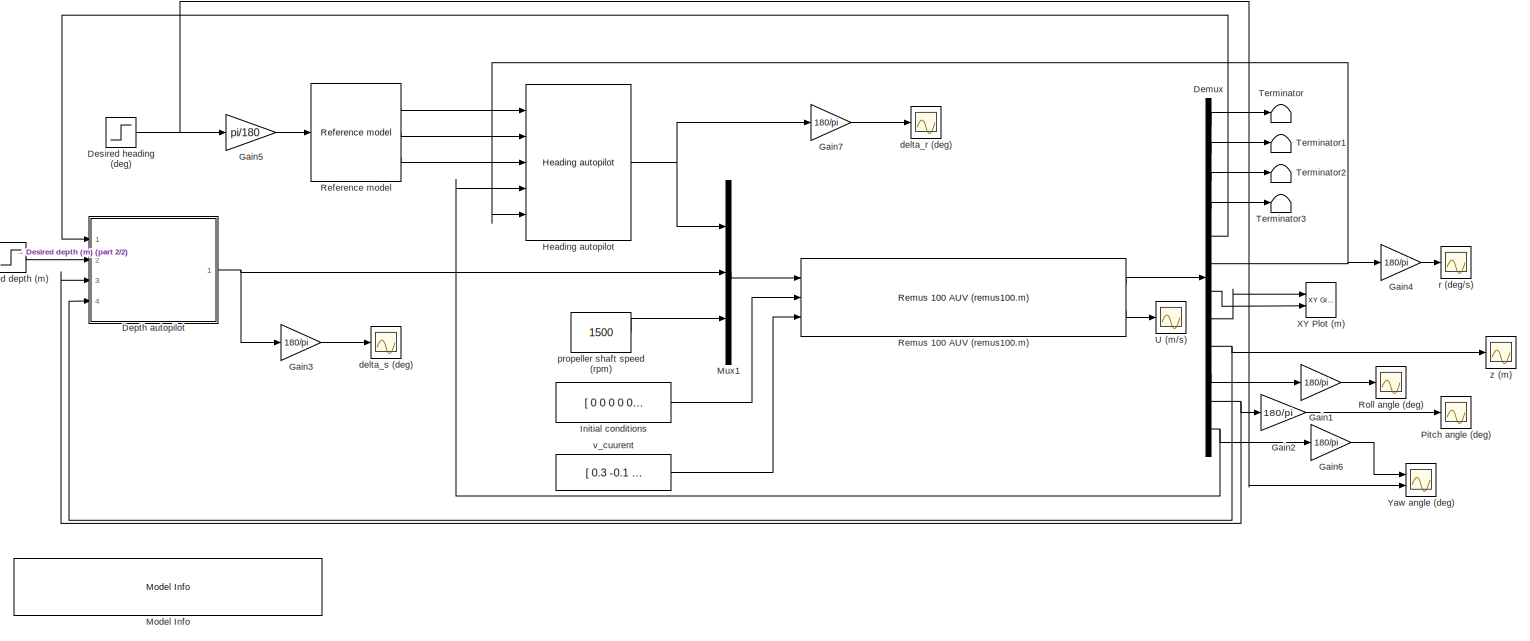
[diagram: root canvas - part 1/2, most of the canvas]
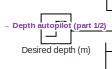
[diagram: root canvas - part 2/2, middle left region]
MODEL slx_07904df64372
KIND model
CONFIG AbsTol = auto
CONFIG EnableMultiTasking = on
CONFIG FixedStep = 0.1
CONFIG MaxStep = auto
CONFIG MinStep = auto
CONFIG RelTol = 1e-3
CONFIG SampleTimeConstraint = Unconstrained
CONFIG SolverName = ode45
CONFIG StartTime = 0.0
CONFIG StopTime = 500
BLOCK [Demux] Demux
  Outputs = 12
  Ports = [1, 12]
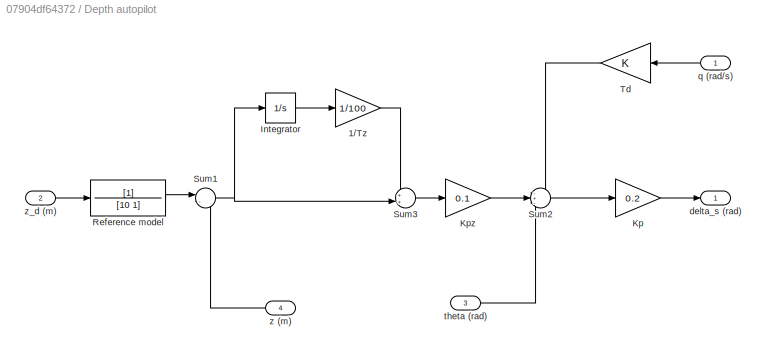
BLOCK [SubSystem] Depth autopilot
  Ports = [4, 1]
  RequestExecContextInheritance = off
BLOCK [Gain] Depth autopilot/1//Tz
  Gain = 1/100
  NameLocation = top
  OutDataTypeStr = Inherit: Same as input
  ParamDataTypeStr = Inherit: Same as input
  SaturateOnIntegerOverflow = on
BLOCK [Integrator] Depth autopilot/Integrator
  Ports = [1, 1]
BLOCK [Gain] Depth autopilot/Kp
  Gain = 0.2
  NameLocation = top
  OutDataTypeStr = Inherit: Same as input
  ParamDataTypeStr = Inherit: Same as input
  SaturateOnIntegerOverflow = on
BLOCK [Gain] Depth autopilot/Kpz
  Gain = 0.1
  NameLocation = top
  OutDataTypeStr = Inherit: Same as input
  ParamDataTypeStr = Inherit: Same as input
  SaturateOnIntegerOverflow = on
BLOCK [TransferFcn] Depth autopilot/Reference model
  Denominator = [10 1]
BLOCK [Sum] Depth autopilot/Sum1
  InputSameDT = on
  Inputs = |-+
  OutDataTypeStr = Inherit: Same as first input
  Ports = [2, 1]
  SaturateOnIntegerOverflow = on
BLOCK [Sum] Depth autopilot/Sum2
  InputSameDT = on
  Inputs = -+-
  OutDataTypeStr = Inherit: Same as first input
  Ports = [3, 1]
  SaturateOnIntegerOverflow = on
BLOCK [Sum] Depth autopilot/Sum3
  InputSameDT = on
  Inputs = ++|
  OutDataTypeStr = Inherit: Same as first input
  Ports = [2, 1]
  SaturateOnIntegerOverflow = on
BLOCK [Gain] Depth autopilot/Td
  NameLocation = top
  OutDataTypeStr = Inherit: Same as input
  ParamDataTypeStr = Inherit: Same as input
  SaturateOnIntegerOverflow = on
BLOCK [Outport] Depth autopilot/delta_s (rad)
BLOCK [Inport] Depth autopilot/q (rad//s)
  NameLocation = top
BLOCK [Inport] Depth autopilot/theta (rad)
  Port = 3
BLOCK [Inport] Depth autopilot/z (m)
  NameLocation = top
  Port = 4
BLOCK [Inport] Depth autopilot/z_d (m)
  Port = 2
BLOCK [Step] Desired depth (m)
  After = 50
  SampleTime = 0
  Time = 100
BLOCK [Step] Desired heading (deg)
  After = -40
  SampleTime = 0
  Time = 150
BLOCK [Gain] Gain1
  Gain = 180/pi
BLOCK [Gain] Gain2
  Gain = 180/pi
BLOCK [Gain] Gain3
  Gain = 180/pi
BLOCK [Gain] Gain4
  Gain = 180/pi
BLOCK [Gain] Gain5
  Gain = pi/180
BLOCK [Gain] Gain6
  Gain = 180/pi
BLOCK [Gain] Gain7
  Gain = 180/pi
BLOCK [Reference] Heading autopilot   REF=mssSimulink/Control/Autopilots/Heading autopilot
  Ports = [5, 1]
  SourceBlock = mssSimulink/Control/Autopilots/Heading autopilot
  SourceType = Course Autopilot
BLOCK [Constant] Initial conditions
  Value = [ 0 0 0 0 0 0 0 0  0 0 0 0]
BLOCK [Reference] Model Info  REF=simulink/Model-Wide
Utilities/Model Info
  Ports = []
  SourceBlock = simulink/Model-Wide\nUtilities/Model Info
  SourceProductBaseCode = SL
  SourceType = CMBlock
BLOCK [Mux] Mux1
  DisplayOption = bar
  Inputs = 3
  Ports = [3, 1]
BLOCK [Scope] Pitch angle (deg)
  Floating = off
  NumInputPorts = 1
  Ports = [1]
  ScopeSpecificationString = Simulink.scopes.TimeScopeBlockCfg('CurrentConfiguration', extmgr.ConfigurationSet(extmgr.Configuration('Core','General UI',true),extmgr.Configuration('Core','Source UI',true),extmgr.Configuration('Sources','WiredSimulink',true,'DataLoggingVariableName','ScopeData1'),extmgr.Configuration('Visuals','Time Domain',true,'SerializedDisplays',{struct('MinYLimReal','-28.6765','MaxYLimReal','12.05309','YLa...<+1421ch>
BLOCK [Reference] Reference model  REF=mssSimulink/Guidance/Reference model
  Ports = [1, 3]
  SourceBlock = mssSimulink/Guidance/Reference model
  SourceType = 3rd-order reference model
BLOCK [Reference] Remus 100 AUV (remus100.m)   REF=mssSimulink/Marine craft models/Remus 100 AUV (remus100.m)
  Ports = [3, 2]
  SourceBlock = mssSimulink/Marine craft models/Remus 100 AUV (remus100.m)
BLOCK [Scope] Roll angle (deg)
  Floating = off
  NumInputPorts = 1
  Ports = [1]
  ScopeSpecificationString = Simulink.scopes.TimeScopeBlockCfg('CurrentConfiguration', extmgr.ConfigurationSet(extmgr.Configuration('Core','General UI',true),extmgr.Configuration('Core','Source UI',true),extmgr.Configuration('Sources','WiredSimulink',true,'DataLoggingVariableName','ScopeData2'),extmgr.Configuration('Visuals','Time Domain',true,'SerializedDisplays',{struct('MinYLimReal','-7.92835','MaxYLimReal','4.53518','YLab...<+1463ch>
BLOCK [Terminator] Terminator
BLOCK [Terminator] Terminator1
BLOCK [Terminator] Terminator2
BLOCK [Terminator] Terminator3
BLOCK [Scope] U (m//s)
  Floating = off
  NumInputPorts = 1
  Ports = [1]
  ScopeSpecificationString = Simulink.scopes.TimeScopeBlockCfg('CurrentConfiguration', extmgr.ConfigurationSet(extmgr.Configuration('Core','General UI',true),extmgr.Configuration('Core','Source UI',true),extmgr.Configuration('Sources','WiredSimulink',true,'DataLoggingVariableName','ScopeData3'),extmgr.Configuration('Visuals','Time Domain',true,'SerializedDisplays',{struct('MinYLimReal','0.8954','MaxYLimReal','1.94139','YLabel...<+1454ch>
BLOCK [Reference] XY Plot (m)  REF=simulink/Sinks/XY Graph
  Ports = [2]
  SourceBlock = simulink/Sinks/XY Graph
  SourceProductBaseCode = SL
  SourceType = XY scope.
BLOCK [Scope] Yaw angle (deg)
  Floating = off
  NumInputPorts = 2
  Ports = [2]
  ScopeSpecificationString = Simulink.scopes.TimeScopeBlockCfg('CurrentConfiguration', extmgr.ConfigurationSet(extmgr.Configuration('Core','General UI',true),extmgr.Configuration('Core','Source UI',true),extmgr.Configuration('Sources','WiredSimulink',true,'DataLoggingVariableName','ScopeData4'),extmgr.Configuration('Visuals','Time Domain',true,'SerializedDisplays',{struct('MinYLimReal','-45.06807','MaxYLimReal','5.0437','YLab...<+1487ch>
BLOCK [Scope] delta_r (deg)
  Floating = off
  NumInputPorts = 1
  Ports = [1]
  ScopeSpecificationString = Simulink.scopes.TimeScopeBlockCfg('CurrentConfiguration', extmgr.ConfigurationSet(extmgr.Configuration('Core','General UI',true),extmgr.Configuration('Core','Source UI',true),extmgr.Configuration('Sources','WiredSimulink',true,'DataLoggingVariableName','ScopeData7'),extmgr.Configuration('Visuals','Time Domain',true,'SerializedDisplays',{struct('MinYLimReal','-33.62504','MaxYLimReal','4.26602','YLa...<+1442ch>
BLOCK [Scope] delta_s (deg)
  Floating = off
  NumInputPorts = 1
  Ports = [1]
  ScopeSpecificationString = Simulink.scopes.TimeScopeBlockCfg('CurrentConfiguration', extmgr.ConfigurationSet(extmgr.Configuration('Core','General UI',true),extmgr.Configuration('Core','Source UI',true),extmgr.Configuration('Sources','WiredSimulink',true,'DataLoggingVariableName','ScopeData6'),extmgr.Configuration('Visuals','Time Domain',true,'SerializedDisplays',{struct('MinYLimReal','-32.31596','MaxYLimReal','11.3558','YLa...<+1421ch>
BLOCK [Constant] propeller shaft speed (rpm)
  Value = 1500
BLOCK [Scope] r (deg//s)
  Floating = off
  NumInputPorts = 1
  Ports = [1]
  ScopeSpecificationString = Simulink.scopes.TimeScopeBlockCfg('CurrentConfiguration', extmgr.ConfigurationSet(extmgr.Configuration('Core','General UI',true),extmgr.Configuration('Core','Source UI',true),extmgr.Configuration('Sources','WiredSimulink',true,'DataLoggingVariableName','ScopeData5'),extmgr.Configuration('Visuals','Time Domain',true,'SerializedDisplays',{struct('MinYLimReal','-3.25001','MaxYLimReal','0.45756','YLab...<+1416ch>
BLOCK [Constant] v_cuurent
  Value = [ 0.3 -0.1 0.2 ]
BLOCK [Scope] z (m)
  Floating = off
  NumInputPorts = 1
  Ports = [1]
  ScopeSpecificationString = Simulink.scopes.TimeScopeBlockCfg('CurrentConfiguration', extmgr.ConfigurationSet(extmgr.Configuration('Core','General UI',true),extmgr.Configuration('Core','Source UI',true),extmgr.Configuration('Sources','WiredSimulink',true),extmgr.Configuration('Visuals','Time Domain',true,'SerializedDisplays',{struct('MinYLimReal','-7.50542','MaxYLimReal','67.5488','YLabelReal','','MinYLimMag','0.00000','MaxY...<+1382ch>
LINE Demux:1 -> Terminator:1
LINE Demux:10 -> Gain1:1
NET Demux:11 -> Depth autopilot:3, Gain2:1
NET Demux:12 -> Gain6:1, Heading autopilot :4
LINE Demux:2 -> Terminator1:1
LINE Demux:3 -> Terminator2:1
LINE Demux:4 -> Terminator3:1
LINE Demux:5 -> Depth autopilot:1
NET Demux:6 -> Gain4:1, Heading autopilot :5
LINE Demux:7 -> XY Plot (m):2
LINE Demux:8 -> XY Plot (m):1
NET Demux:9 -> Depth autopilot:4, z (m):1
LINE Depth autopilot/1//Tz:1 -> Depth autopilot/Sum3:1
LINE Depth autopilot/Integrator:1 -> Depth autopilot/1//Tz:1
LINE Depth autopilot/Kp:1 -> Depth autopilot/delta_s (rad):1
LINE Depth autopilot/Kpz:1 -> Depth autopilot/Sum2:2
LINE Depth autopilot/Reference model:1 -> Depth autopilot/Sum1:1
NET Depth autopilot/Sum1:1 -> Depth autopilot/Integrator:1, Depth autopilot/Sum3:2
LINE Depth autopilot/Sum2:1 -> Depth autopilot/Kp:1
LINE Depth autopilot/Sum3:1 -> Depth autopilot/Kpz:1
LINE Depth autopilot/Td:1 -> Depth autopilot/Sum2:1
LINE Depth autopilot/q (rad//s):1 -> Depth autopilot/Td:1
LINE Depth autopilot/theta (rad):1 -> Depth autopilot/Sum2:3
LINE Depth autopilot/z (m):1 -> Depth autopilot/Sum1:2
LINE Depth autopilot/z_d (m):1 -> Depth autopilot/Reference model:1
NET Depth autopilot:1 -> Gain3:1, Mux1:2
LINE Desired depth (m):1 -> Depth autopilot:2
NET Desired heading (deg):1 -> Gain5:1, Yaw angle (deg):2
LINE Gain1:1 -> Roll angle (deg):1
LINE Gain2:1 -> Pitch angle (deg):1
LINE Gain3:1 -> delta_s (deg):1
LINE Gain4:1 -> r (deg//s):1
LINE Gain5:1 -> Reference model:1
LINE Gain6:1 -> Yaw angle (deg):1
LINE Gain7:1 -> delta_r (deg):1
NET Heading autopilot :1 -> Gain7:1, Mux1:1
LINE Initial conditions:1 -> Remus 100 AUV (remus100.m) :2
LINE Mux1:1 -> Remus 100 AUV (remus100.m) :1
LINE Reference model:1 -> Heading autopilot :1
LINE Reference model:2 -> Heading autopilot :2
LINE Reference model:3 -> Heading autopilot :3
LINE Remus 100 AUV (remus100.m) :1 -> Demux:1
LINE Remus 100 AUV (remus100.m) :2 -> U (m//s):1
LINE propeller shaft speed (rpm):1 -> Mux1:3
LINE v_cuurent:1 -> Remus 100 AUV (remus100.m) :3
note: NET lines group one-source signal fan-out (src -> all destinations, sorted); 1:1 wires keep LINE
